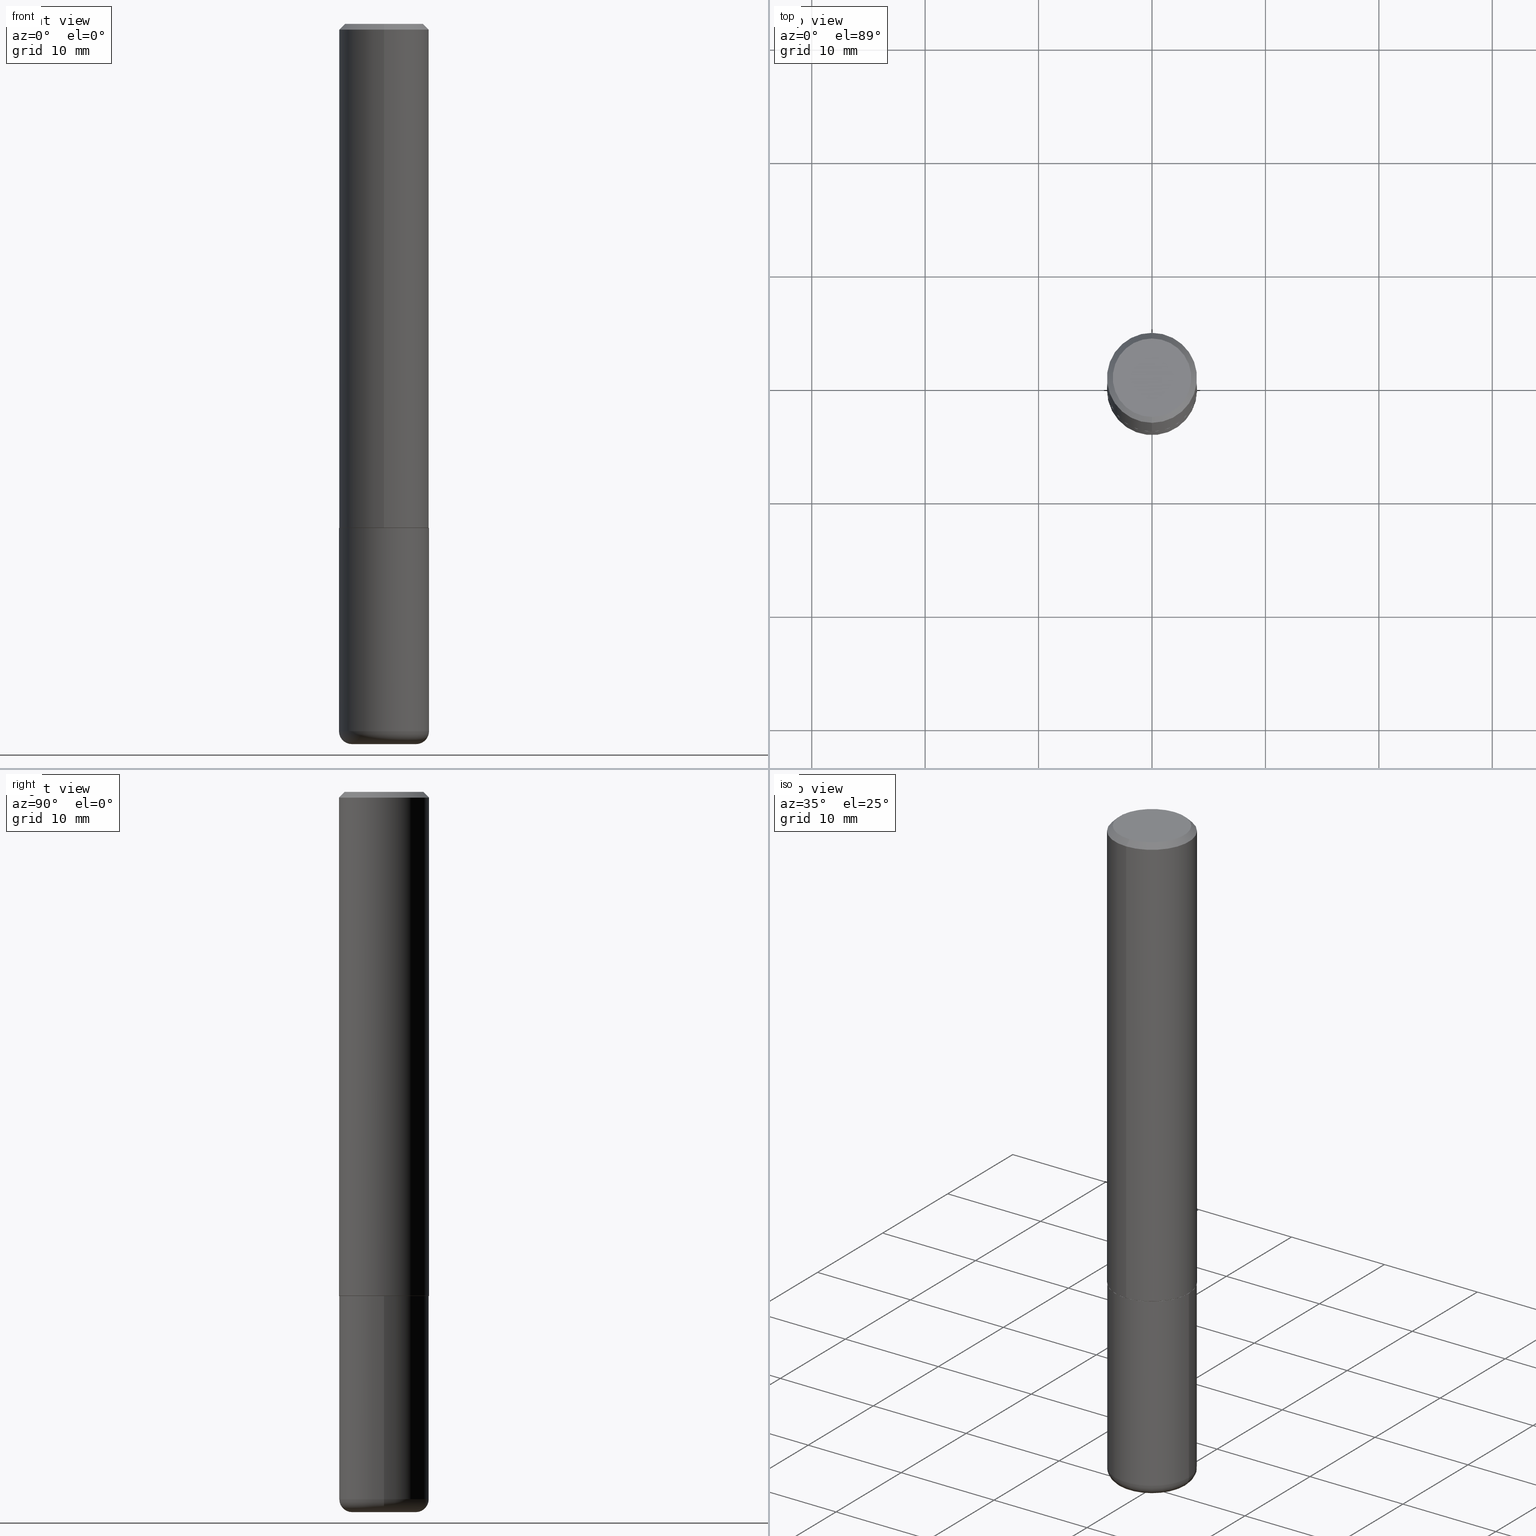
[diagram: canonical four-view strip — front | top / right | iso, engineering-drawing reading convention]
A machine part, canonical four-view strip (front | top / right | iso — engineering-drawing reading convention). The complete STEP part file that produces these views, byte-faithful:
ISO-10303-21;
HEADER;
FILE_DESCRIPTION (( 'STEP AP203' ),
    '1' );
FILE_NAME ('36109.STEP',
    '2024-03-01T15:40:19',
    ( '' ),
    ( '' ),
    'SwSTEP 2.0',
    'SolidWorks 2023',
    '' );
FILE_SCHEMA (( 'CONFIG_CONTROL_DESIGN' ));
ENDSEC;

DATA;
#1 =( NAMED_UNIT ( * ) PLANE_ANGLE_UNIT ( ) SI_UNIT ( $, .RADIAN. ) );
#2 = CARTESIAN_POINT ( 'NONE',  ( 0.000000000000000000, 0.000000000000000000, 0.000000000000000000 ) ) ;
#3 = CIRCLE ( 'NONE', #310, 0.1552499999999999991 ) ;
#4 = PERSON_AND_ORGANIZATION ( #101, #247 ) ;
#5 = APPLICATION_CONTEXT ( 'configuration controlled 3d designs of mechanical parts and assemblies' ) ;
#6 = DATE_AND_TIME ( #332, #220 ) ;
#7 = DIRECTION ( 'NONE',  ( 0.000000000000000000, 0.000000000000000000, 1.000000000000000000 ) ) ;
#8 = CARTESIAN_POINT ( 'NONE',  ( 1.110223024625157329E-15, 0.1562500000000001388, -5.459638814658946559E-16 ) ) ;
#9 = AXIS2_PLACEMENT_3D ( 'NONE', #296, #329, #163 ) ;
#10 = EDGE_LOOP ( 'NONE', ( #183, #223, #18, #73 ) ) ;
#11 = APPROVAL_DATE_TIME ( #246, #54 ) ;
#12 = EDGE_CURVE ( 'NONE', #403, #402, #235, .T. ) ;
#13 = AXIS2_PLACEMENT_3D ( 'NONE', #143, #368, #205 ) ;
#14 = SECURITY_CLASSIFICATION ( '', '', #168 ) ;
#15 = VERTEX_POINT ( 'NONE', #252 ) ;
#16 = CC_DESIGN_PERSON_AND_ORGANIZATION_ASSIGNMENT ( #393, #207, ( #140 ) ) ;
#17 = ORIENTED_EDGE ( 'NONE', *, *, #331, .T. ) ;
#18 = ORIENTED_EDGE ( 'NONE', *, *, #343, .T. ) ;
#19 = CARTESIAN_POINT ( 'NONE',  ( 4.887184266385666173E-31, -6.988337682763458192E-17, -0.02000000000000003511 ) ) ;
#20 = EDGE_LOOP ( 'NONE', ( #372, #312 ) ) ;
#21 = AXIS2_PLACEMENT_3D ( 'NONE', #128, #97, #260 ) ;
#22 = DIRECTION ( 'NONE',  ( -1.000000000000000000, 6.982962677686265922E-15, -4.876176775795935793E-29 ) ) ;
#23 = CARTESIAN_POINT ( 'NONE',  ( 1.110223024625179220E-15, 0.1562499999999940881, -1.749000000000000554 ) ) ;
#24 = CARTESIAN_POINT ( 'NONE',  ( -0.1562500000000000000, -6.230616490292557845E-15, -1.750000000000000222 ) ) ;
#25 = EDGE_CURVE ( 'NONE', #216, #108, #378, .T. ) ;
#26 = DIRECTION ( 'NONE',  ( -2.445468806185136597E-29, 3.491481338843145583E-15, 1.000000000000000000 ) ) ;
#27 = DIRECTION ( 'NONE',  ( -6.982962677686265922E-15, -1.000000000000000000, 3.519288880726909138E-15 ) ) ;
#28 = AXIS2_PLACEMENT_3D ( 'NONE', #59, #351, #165 ) ;
#29 = CARTESIAN_POINT ( 'NONE',  ( 0.1562500000000000000, -7.201180261363985422E-15, -1.750000000000000222 ) ) ;
#30 = CC_DESIGN_DATE_AND_TIME_ASSIGNMENT ( #6, #179, ( #14 ) ) ;
#31 = CARTESIAN_POINT ( 'NONE',  ( -0.1562500000000000000, 1.110223024625156540E-15, -7.685836078523291160E-30 ) ) ;
#32 = CARTESIAN_POINT ( 'NONE',  ( 0.000000000000000000, 0.000000000000000000, 0.000000000000000000 ) ) ;
#33 = PERSON_AND_ORGANIZATION ( #101, #247 ) ;
#34 = DIRECTION ( 'NONE',  ( -6.982962677686265922E-15, -1.000000000000000000, 3.494168841381722958E-15 ) ) ;
#35 = DIMENSIONAL_EXPONENTS ( 1.000000000000000000, 0.000000000000000000, 0.000000000000000000, 0.000000000000000000, 0.000000000000000000, 0.000000000000000000, 0.000000000000000000 ) ;
#36 = AXIS2_PLACEMENT_3D ( 'NONE', #125, #236, #22 ) ;
#37 = CC_DESIGN_APPROVAL ( #244, ( #140 ) ) ;
#38 = CARTESIAN_POINT ( 'NONE',  ( 9.514286648347539576E-16, 0.1362500000000000100, -4.545548560773172373E-16 ) ) ;
#39 =( LENGTH_UNIT ( ) NAMED_UNIT ( * ) SI_UNIT ( $, .METRE. ) );
#40 = FACE_OUTER_BOUND ( 'NONE', #141, .T. ) ;
#41 = ORIENTED_EDGE ( 'NONE', *, *, #350, .F. ) ;
#42 = ORIENTED_EDGE ( 'NONE', *, *, #301, .T. ) ;
#43 = EDGE_CURVE ( 'NONE', #216, #221, #3, .T. ) ;
#44 = ORIENTED_EDGE ( 'NONE', *, *, #301, .F. ) ;
#45 = ORIENTED_EDGE ( 'NONE', *, *, #66, .F. ) ;
#46 = CIRCLE ( 'NONE', #21, 0.1562500000000000000 ) ;
#47 = CIRCLE ( 'NONE', #212, 0.1562500000000002220 ) ;
#48 = VERTEX_POINT ( 'NONE', #263 ) ;
#49 = EDGE_LOOP ( 'NONE', ( #150, #50, #119, #149 ) ) ;
#50 = ORIENTED_EDGE ( 'NONE', *, *, #120, .T. ) ;
#51 = ORIENTED_EDGE ( 'NONE', *, *, #176, .T. ) ;
#52 = DIRECTION ( 'NONE',  ( -2.443592133192829145E-29, 3.494168841381722958E-15, 1.000000000000000000 ) ) ;
#53 = DIRECTION ( 'NONE',  ( -6.982962677686265922E-15, -1.000000000000000000, 3.494168841381722563E-15 ) ) ;
#54 = APPROVAL ( #274, 'UNSPECIFIED' ) ;
#55 = VECTOR ( 'NONE', #152, 39.37007874015748143 ) ;
#56 = CARTESIAN_POINT ( 'NONE',  ( -0.1562500000000000000, -7.461363662234766770E-15, -2.455000000000000071 ) ) ;
#57 = LINE ( 'NONE', #187, #241 ) ;
#58 = DIRECTION ( 'NONE',  ( -6.982962677686265922E-15, -1.000000000000000000, 3.494168841381722563E-15 ) ) ;
#59 = CARTESIAN_POINT ( 'NONE',  ( 4.276286233087450864E-29, -6.114795472418015571E-15, -1.750000000000000222 ) ) ;
#60 = ADVANCED_FACE ( 'NONE', ( #384 ), #200, .T. ) ;
#61 = CARTESIAN_POINT ( 'NONE',  ( -1.084104955710750166E-15, -0.1552500000000061053, -1.749999999999999556 ) ) ;
#62 = APPROVAL_PERSON_ORGANIZATION ( #218, #54, #307 ) ;
#63 = FACE_OUTER_BOUND ( 'NONE', #278, .T. ) ;
#64 = CARTESIAN_POINT ( 'NONE',  ( 6.113672015462842613E-29, -8.728703347107864943E-15, -2.500000000000000000 ) ) ;
#65 = DATE_AND_TIME ( #239, #104 ) ;
#66 = EDGE_CURVE ( 'NONE', #221, #216, #361, .T. ) ;
#67 = CIRCLE ( 'NONE', #305, 0.04499999999999996364 ) ;
#68 = VECTOR ( 'NONE', #82, 39.37007874015748143 ) ;
#69 = DIRECTION ( 'NONE',  ( 1.000000000000000000, -6.982962677686269077E-15, 0.000000000000000000 ) ) ;
#70 = CIRCLE ( 'NONE', #333, 0.1112500000000000017 ) ;
#71 = VERTEX_POINT ( 'NONE', #362 ) ;
#72 = PRODUCT ( '36109', '36109', '', ( #138 ) ) ;
#73 = ORIENTED_EDGE ( 'NONE', *, *, #176, .F. ) ;
#74 = CC_DESIGN_DATE_AND_TIME_ASSIGNMENT ( #84, #155, ( #158 ) ) ;
#75 = DIRECTION ( 'NONE',  ( -2.443592133192829145E-29, 3.494168841381722958E-15, 1.000000000000000000 ) ) ;
#76 = ORIENTED_EDGE ( 'NONE', *, *, #25, .T. ) ;
#77 = EDGE_CURVE ( 'NONE', #214, #345, #46, .T. ) ;
#78 = ORIENTED_EDGE ( 'NONE', *, *, #242, .F. ) ;
#79 = VERTEX_POINT ( 'NONE', #91 ) ;
#80 = ORIENTED_EDGE ( 'NONE', *, *, #288, .T. ) ;
#81 = APPROVAL_ROLE ( '' ) ;
#82 = DIRECTION ( 'NONE',  ( -2.445468806185136877E-29, 3.491481338843145188E-15, 1.000000000000000000 ) ) ;
#83 = CARTESIAN_POINT ( 'NONE',  ( -0.1112500000000000017, -7.781107893326811349E-15, -2.455000000000000071 ) ) ;
#84 = DATE_AND_TIME ( #314, #319 ) ;
#85 = DIRECTION ( 'NONE',  ( 1.000000000000000000, -6.982962677686266711E-15, 4.876176775795936353E-29 ) ) ;
#86 = TOROIDAL_SURFACE ( 'NONE', #282, 0.1112500000000000017, 0.04499999999999996364 ) ;
#87 = DIRECTION ( 'NONE',  ( 1.000000000000000000, -6.982962677686266711E-15, 4.876176775795936353E-29 ) ) ;
#88 = VECTOR ( 'NONE', #75, 39.37007874015748143 ) ;
#89 = VECTOR ( 'NONE', #261, 39.37007874015748143 ) ;
#90 = PLANE ( 'NONE',  #367 ) ;
#91 = CARTESIAN_POINT ( 'NONE',  ( 1.021258291611616861E-15, 0.1362500000000000100, -4.330292075163745362E-16 ) ) ;
#92 = COORDINATED_UNIVERSAL_TIME_OFFSET ( 5, 0, .BEHIND. ) ;
#93 = CARTESIAN_POINT ( 'NONE',  ( 4.273842640954258805E-29, -6.111301303576634099E-15, -1.749000000000000110 ) ) ;
#94 = DIRECTION ( 'NONE',  ( 2.443592133192829145E-29, -3.494168841381722958E-15, -1.000000000000000000 ) ) ;
#95 = DESIGN_CONTEXT ( 'detailed design', #394, 'design' ) ;
#96 = CARTESIAN_POINT ( 'NONE',  ( 0.000000000000000000, 0.000000000000000000, 0.000000000000000000 ) ) ;
#97 = DIRECTION ( 'NONE',  ( -2.445468806185136597E-29, 3.491481338843145583E-15, 1.000000000000000000 ) ) ;
#98 = PERSON_AND_ORGANIZATION ( #101, #247 ) ;
#99 = DIRECTION ( 'NONE',  ( 1.000000000000000000, 0.000000000000000000, 0.000000000000000000 ) ) ;
#100 = COORDINATED_UNIVERSAL_TIME_OFFSET ( 5, 0, .BEHIND. ) ;
#101 = PERSON ( 'UNSPECIFIED', 'UNSPECIFIED', 'UNSPECIFIED', ('UNSPECIFIED'), ('UNSPECIFIED'), ('UNSPECIFIED') ) ;
#102 = PLANE ( 'NONE',  #397 ) ;
#103 = AXIS2_PLACEMENT_3D ( 'NONE', #287, #412, #123 ) ;
#104 = LOCAL_TIME ( 10, 40, 19.00000000000000000, #100 ) ;
#105 =( CONVERSION_BASED_UNIT ( 'INCH', #142 ) LENGTH_UNIT ( ) NAMED_UNIT ( #35 ) );
#106 = DIRECTION ( 'NONE',  ( -6.982962677686266711E-15, -1.000000000000000000, 3.491481338843145583E-15 ) ) ;
#107 = SHAPE_DEFINITION_REPRESENTATION ( #407, #122 ) ;
#108 = VERTEX_POINT ( 'NONE', #360 ) ;
#109 = ADVANCED_FACE ( 'NONE', ( #63 ), #330, .T. ) ;
#110 = CIRCLE ( 'NONE', #116, 0.1562500000000002220 ) ;
#111 = AXIS2_PLACEMENT_3D ( 'NONE', #121, #124, #85 ) ;
#112 = EDGE_LOOP ( 'NONE', ( #374, #344, #76, #373 ) ) ;
#113 = EDGE_LOOP ( 'NONE', ( #313, #45 ) ) ;
#114 = ORIENTED_EDGE ( 'NONE', *, *, #364, .T. ) ;
#115 = EDGE_LOOP ( 'NONE', ( #215, #17, #309, #341 ) ) ;
#116 = AXIS2_PLACEMENT_3D ( 'NONE', #131, #295, #417 ) ;
#117 = DIRECTION ( 'NONE',  ( 1.000000000000000000, -6.982962677686269077E-15, 0.000000000000000000 ) ) ;
#118 = DIRECTION ( 'NONE',  ( -6.982962677686266711E-15, -1.000000000000000000, 3.496765431890256131E-15 ) ) ;
#119 = ORIENTED_EDGE ( 'NONE', *, *, #380, .F. ) ;
#120 = EDGE_CURVE ( 'NONE', #15, #403, #67, .T. ) ;
#121 = CARTESIAN_POINT ( 'NONE',  ( 0.000000000000000000, 0.000000000000000000, 0.000000000000000000 ) ) ;
#122 = ADVANCED_BREP_SHAPE_REPRESENTATION ( '36109', ( #189, #193, #416 ), #376 ) ;
#123 = DIRECTION ( 'NONE',  ( -6.982962677686265922E-15, -1.000000000000000000, 3.519288880726909138E-15 ) ) ;
#124 = DIRECTION ( 'NONE',  ( -2.445468806185136597E-29, 3.491481338843145583E-15, 1.000000000000000000 ) ) ;
#125 = CARTESIAN_POINT ( 'NONE',  ( 6.113672015462842613E-29, -8.728703347107864943E-15, -2.500000000000000000 ) ) ;
#126 = CIRCLE ( 'NONE', #197, 0.1562500000000000278 ) ;
#127 = DIRECTION ( 'NONE',  ( -6.982962677686266711E-15, -1.000000000000000000, 3.494168841381722958E-15 ) ) ;
#128 = CARTESIAN_POINT ( 'NONE',  ( 4.279570410823989044E-29, -6.110092342975505460E-15, -1.750000000000000222 ) ) ;
#129 = CYLINDRICAL_SURFACE ( 'NONE', #181, 0.1562500000000001388 ) ;
#130 = CARTESIAN_POINT ( 'NONE',  ( -1.091087918388479962E-15, -0.1562500000000001388, 5.459638814658946559E-16 ) ) ;
#131 = CARTESIAN_POINT ( 'NONE',  ( 4.273842640954258805E-29, -6.111301303576634099E-15, -1.749000000000000110 ) ) ;
#132 = CC_DESIGN_SECURITY_CLASSIFICATION ( #14, ( #140 ) ) ;
#133 = APPROVAL ( #134, 'UNSPECIFIED' ) ;
#134 = APPROVAL_STATUS ( 'not_yet_approved' ) ;
#135 = DIRECTION ( 'NONE',  ( -2.445468806185136597E-29, 3.491481338843145583E-15, 1.000000000000000000 ) ) ;
#136 = COORDINATED_UNIVERSAL_TIME_OFFSET ( 5, 0, .BEHIND. ) ;
#137 = ADVANCED_FACE ( 'NONE', ( #418 ), #401, .T. ) ;
#138 = MECHANICAL_CONTEXT ( 'NONE', #5, 'mechanical' ) ;
#139 = PERSON_AND_ORGANIZATION_ROLE ( 'creator' ) ;
#140 = PRODUCT_DEFINITION_FORMATION_WITH_SPECIFIED_SOURCE ( 'ANY', '', #72, .NOT_KNOWN. ) ;
#141 = EDGE_LOOP ( 'NONE', ( #255, #42, #280, #206 ) ) ;
#142 = LENGTH_MEASURE_WITH_UNIT ( LENGTH_MEASURE( 0.02539999999999999897 ), #39 );
#143 = CARTESIAN_POINT ( 'NONE',  ( 4.279570410823989044E-29, -6.110092342975505460E-15, -1.750000000000000222 ) ) ;
#144 = COORDINATED_UNIVERSAL_TIME_OFFSET ( 5, 0, .BEHIND. ) ;
#145 = ORIENTED_EDGE ( 'NONE', *, *, #364, .F. ) ;
#146 = CONICAL_SURFACE ( 'NONE', #162, 0.1562500000000000278, 0.7853981633974471688 ) ;
#147 = ADVANCED_FACE ( 'NONE', ( #293 ), #160, .T. ) ;
#148 = AXIS2_PLACEMENT_3D ( 'NONE', #414, #386, #227 ) ;
#149 = ORIENTED_EDGE ( 'NONE', *, *, #279, .F. ) ;
#150 = ORIENTED_EDGE ( 'NONE', *, *, #242, .T. ) ;
#151 = VERTEX_POINT ( 'NONE', #321 ) ;
#152 = DIRECTION ( 'NONE',  ( 5.024295867788404755E-15, 0.7071067811865981989, 0.7071067811864968355 ) ) ;
#153 = CIRCLE ( 'NONE', #276, 0.04499999999999996364 ) ;
#154 = ORIENTED_EDGE ( 'NONE', *, *, #311, .T. ) ;
#155 = DATE_TIME_ROLE ( 'creation_date' ) ;
#156 = CYLINDRICAL_SURFACE ( 'NONE', #111, 0.1562500000000000000 ) ;
#157 = DIRECTION ( 'NONE',  ( -6.982962677686266711E-15, -1.000000000000000000, 3.494168841381722958E-15 ) ) ;
#158 = PRODUCT_DEFINITION ( 'UNKNOWN', '', #140, #95 ) ;
#159 = PLANE ( 'NONE',  #277 ) ;
#160 = CYLINDRICAL_SURFACE ( 'NONE', #271, 0.1562500000000001388 ) ;
#161 = EDGE_CURVE ( 'NONE', #108, #315, #110, .T. ) ;
#162 = AXIS2_PLACEMENT_3D ( 'NONE', #392, #234, #389 ) ;
#163 = DIRECTION ( 'NONE',  ( -6.982962677686265922E-15, -1.000000000000000000, 3.519288880726909138E-15 ) ) ;
#164 = DIRECTION ( 'NONE',  ( 1.000000000000000000, -6.982962677686269077E-15, 0.000000000000000000 ) ) ;
#165 = DIRECTION ( 'NONE',  ( -6.982962677686265922E-15, -1.000000000000000000, 3.519288880726909138E-15 ) ) ;
#166 = DIRECTION ( 'NONE',  ( 7.105427357601001859E-15, 1.000000000000000000, -3.491481338843145583E-15 ) ) ;
#167 = EDGE_CURVE ( 'NONE', #79, #151, #366, .T. ) ;
#168 = SECURITY_CLASSIFICATION_LEVEL ( 'unclassified' ) ;
#169 = PERSON_AND_ORGANIZATION_ROLE ( 'design_owner' ) ;
#170 = AXIS2_PLACEMENT_3D ( 'NONE', #328, #356, #258 ) ;
#171 = PERSON_AND_ORGANIZATION ( #101, #247 ) ;
#172 = LINE ( 'NONE', #8, #88 ) ;
#173 = DIRECTION ( 'NONE',  ( -2.445468806185136877E-29, 3.491481338843145188E-15, 1.000000000000000000 ) ) ;
#174 = ORIENTED_EDGE ( 'NONE', *, *, #77, .F. ) ;
#175 = EDGE_LOOP ( 'NONE', ( #323, #154 ) ) ;
#176 = EDGE_CURVE ( 'NONE', #79, #410, #57, .T. ) ;
#177 = ADVANCED_FACE ( 'NONE', ( #232 ), #291, .T. ) ;
#178 = ORIENTED_EDGE ( 'NONE', *, *, #167, .F. ) ;
#179 = DATE_TIME_ROLE ( 'classification_date' ) ;
#180 = EDGE_LOOP ( 'NONE', ( #347, #80, #308, #405 ) ) ;
#181 = AXIS2_PLACEMENT_3D ( 'NONE', #96, #52, #58 ) ;
#182 = EDGE_LOOP ( 'NONE', ( #78, #44 ) ) ;
#183 = ORIENTED_EDGE ( 'NONE', *, *, #311, .F. ) ;
#184 = EDGE_LOOP ( 'NONE', ( #250, #342, #339, #145 ) ) ;
#185 = DIRECTION ( 'NONE',  ( -2.443592133192829145E-29, 3.494168841381722958E-15, 1.000000000000000000 ) ) ;
#186 = AXIS2_PLACEMENT_3D ( 'NONE', #194, #292, #127 ) ;
#187 = CARTESIAN_POINT ( 'NONE',  ( 1.091087918388479765E-15, 0.1562499999999999722, -0.02000000000000057981 ) ) ;
#188 = FACE_OUTER_BOUND ( 'NONE', #175, .T. ) ;
#189 = MANIFOLD_SOLID_BREP ( 'Body-Move/Copy2[1]', #298 ) ;
#190 = DIRECTION ( 'NONE',  ( -2.443592133192829145E-29, 3.494168841381722958E-15, 1.000000000000000000 ) ) ;
#191 = EDGE_CURVE ( 'NONE', #108, #48, #326, .T. ) ;
#192 = DIRECTION ( 'NONE',  ( -2.445468806185136597E-29, 3.491481338843145583E-15, 1.000000000000000000 ) ) ;
#193 = MANIFOLD_SOLID_BREP ( 'Body-Move/Copy2[2]', #385 ) ;
#194 = CARTESIAN_POINT ( 'NONE',  ( -1.051998109707860162E-45, 1.504285009843582967E-31, 4.305129712188530359E-17 ) ) ;
#195 = AXIS2_PLACEMENT_3D ( 'NONE', #355, #94, #324 ) ;
#196 = DIRECTION ( 'NONE',  ( 4.937700262164541731E-15, 0.7071067811865442421, -0.7071067811865507924 ) ) ;
#197 = AXIS2_PLACEMENT_3D ( 'NONE', #19, #199, #118 ) ;
#198 = PERSON_AND_ORGANIZATION ( #101, #247 ) ;
#199 = DIRECTION ( 'NONE',  ( -2.443592133192829145E-29, 3.494168841381722958E-15, 1.000000000000000000 ) ) ;
#200 = PLANE ( 'NONE',  #36 ) ;
#201 = APPLICATION_PROTOCOL_DEFINITION ( 'international standard', 'config_control_design', 1994, #5 ) ;
#202 = APPROVAL_DATE_TIME ( #65, #133 ) ;
#203 = LOCAL_TIME ( 10, 40, 19.00000000000000000, #92 ) ;
#204 = ADVANCED_FACE ( 'NONE', ( #290 ), #146, .T. ) ;
#205 = DIRECTION ( 'NONE',  ( 1.000000000000000000, -6.982962677686269077E-15, 0.000000000000000000 ) ) ;
#206 = ORIENTED_EDGE ( 'NONE', *, *, #12, .F. ) ;
#207 = PERSON_AND_ORGANIZATION_ROLE ( 'design_supplier' ) ;
#208 = DIRECTION ( 'NONE',  ( 6.982962677686265922E-15, 1.000000000000000000, -3.494168841381722958E-15 ) ) ;
#209 = CARTESIAN_POINT ( 'NONE',  ( 6.003625919184510659E-29, -8.571586686859923311E-15, -2.455000000000000071 ) ) ;
#210 = CARTESIAN_POINT ( 'NONE',  ( 6.003625919184510659E-29, -8.571586686859923311E-15, -2.455000000000000071 ) ) ;
#211 = AXIS2_PLACEMENT_3D ( 'NONE', #210, #135, #396 ) ;
#212 = AXIS2_PLACEMENT_3D ( 'NONE', #93, #185, #391 ) ;
#213 = ADVANCED_FACE ( 'NONE', ( #230 ), #370, .T. ) ;
#214 = VERTEX_POINT ( 'NONE', #24 ) ;
#215 = ORIENTED_EDGE ( 'NONE', *, *, #43, .T. ) ;
#216 = VERTEX_POINT ( 'NONE', #61 ) ;
#217 = EDGE_LOOP ( 'NONE', ( #284, #178, #51, #348 ) ) ;
#218 = PERSON_AND_ORGANIZATION ( #101, #247 ) ;
#219 = CIRCLE ( 'NONE', #327, 0.1112500000000000017 ) ;
#220 = LOCAL_TIME ( 10, 40, 19.00000000000000000, #136 ) ;
#221 = VERTEX_POINT ( 'NONE', #243 ) ;
#222 = CARTESIAN_POINT ( 'NONE',  ( -1.084104955710750166E-15, -0.1552500000000061053, -1.749999999999999556 ) ) ;
#223 = ORIENTED_EDGE ( 'NONE', *, *, #322, .T. ) ;
#224 = CALENDAR_DATE ( 2024, 1, 3 ) ;
#225 = CC_DESIGN_PERSON_AND_ORGANIZATION_ASSIGNMENT ( #98, #390, ( #14 ) ) ;
#226 = CARTESIAN_POINT ( 'NONE',  ( -1.051998109707860162E-45, 1.504285009843582967E-31, 4.305129712188530359E-17 ) ) ;
#227 = DIRECTION ( 'NONE',  ( 1.000000000000000000, -6.982962677686269077E-15, 0.000000000000000000 ) ) ;
#228 = VECTOR ( 'NONE', #190, 39.37007874015748143 ) ;
#229 = CC_DESIGN_APPROVAL ( #133, ( #158 ) ) ;
#230 = FACE_OUTER_BOUND ( 'NONE', #217, .T. ) ;
#231 = CARTESIAN_POINT ( 'NONE',  ( -1.071952812151801412E-15, -0.1562500000000001110, -0.01999999999999948694 ) ) ;
#232 = FACE_OUTER_BOUND ( 'NONE', #115, .T. ) ;
#233 = FACE_OUTER_BOUND ( 'NONE', #20, .T. ) ;
#234 = DIRECTION ( 'NONE',  ( 2.443592133192829145E-29, -3.494168841381722958E-15, -1.000000000000000000 ) ) ;
#235 = CIRCLE ( 'NONE', #352, 0.1562500000000000000 ) ;
#236 = DIRECTION ( 'NONE',  ( 2.438088387897960049E-29, -3.491481338843145188E-15, -1.000000000000000000 ) ) ;
#237 = ADVANCED_FACE ( 'NONE', ( #270 ), #102, .F. ) ;
#238 =( NAMED_UNIT ( * ) SI_UNIT ( $, .STERADIAN. ) SOLID_ANGLE_UNIT ( ) );
#239 = CALENDAR_DATE ( 2024, 1, 3 ) ;
#240 = DIRECTION ( 'NONE',  ( -2.443592133192828865E-29, 3.494168841381722958E-15, 1.000000000000000000 ) ) ;
#241 = VECTOR ( 'NONE', #196, 39.37007874015748143 ) ;
#242 = EDGE_CURVE ( 'NONE', #71, #15, #219, .T. ) ;
#243 = CARTESIAN_POINT ( 'NONE',  ( 1.106670310946399226E-15, 0.1552499999999938929, -1.750000000000000666 ) ) ;
#244 = APPROVAL ( #379, 'UNSPECIFIED' ) ;
#245 = AXIS2_PLACEMENT_3D ( 'NONE', #226, #382, #157 ) ;
#246 = DATE_AND_TIME ( #400, #346 ) ;
#247 = ORGANIZATION ( 'UNSPECIFIED', 'UNSPECIFIED', '' ) ;
#248 = ADVANCED_FACE ( 'NONE', ( #40 ), #86, .T. ) ;
#249 = EDGE_LOOP ( 'NONE', ( #404, #273, #272, #41 ) ) ;
#250 = ORIENTED_EDGE ( 'NONE', *, *, #380, .T. ) ;
#251 = UNCERTAINTY_MEASURE_WITH_UNIT (LENGTH_MEASURE( 1.000000000000000082E-05 ), #105, 'distance_accuracy_value', 'NONE');
#252 = CARTESIAN_POINT ( 'NONE',  ( -0.1112500000000000017, -7.699794107904759087E-15, -2.500000000000000000 ) ) ;
#253 = PERSON_AND_ORGANIZATION ( #101, #247 ) ;
#254 = LINE ( 'NONE', #231, #89 ) ;
#255 = ORIENTED_EDGE ( 'NONE', *, *, #120, .F. ) ;
#256 = ADVANCED_FACE ( 'NONE', ( #337 ), #338, .T. ) ;
#257 = DIRECTION ( 'NONE',  ( -1.000000000000000000, 7.105427357600996337E-15, 0.000000000000000000 ) ) ;
#258 = DIRECTION ( 'NONE',  ( -6.982962677686266711E-15, -1.000000000000000000, 3.496765431890256131E-15 ) ) ;
#259 = CC_DESIGN_APPROVAL ( #54, ( #14 ) ) ;
#260 = DIRECTION ( 'NONE',  ( 1.000000000000000000, -6.982962677686269077E-15, 0.000000000000000000 ) ) ;
#261 = DIRECTION ( 'NONE',  ( -4.851104656540957964E-15, -0.7071067811865491270, -0.7071067811865459074 ) ) ;
#262 = CARTESIAN_POINT ( 'NONE',  ( 4.276286233087450864E-29, -6.114795472418015571E-15, -1.750000000000000222 ) ) ;
#263 = CARTESIAN_POINT ( 'NONE',  ( -1.071952812151801412E-15, -0.1562500000000001110, -0.01999999999999948694 ) ) ;
#264 = APPROVAL_DATE_TIME ( #318, #244 ) ;
#265 = CIRCLE ( 'NONE', #13, 0.1562500000000000000 ) ;
#266 = CARTESIAN_POINT ( 'NONE',  ( 4.276286233087450864E-29, -6.114795472418015571E-15, -1.750000000000000222 ) ) ;
#267 = CIRCLE ( 'NONE', #170, 0.1562500000000000278 ) ;
#268 = DIRECTION ( 'NONE',  ( 1.000000000000000000, -6.982962677686270655E-15, 4.883557194083114022E-29 ) ) ;
#269 = DIRECTION ( 'NONE',  ( 2.443592133192828865E-29, -3.494168841381722958E-15, -1.000000000000000000 ) ) ;
#270 = FACE_OUTER_BOUND ( 'NONE', #113, .T. ) ;
#271 = AXIS2_PLACEMENT_3D ( 'NONE', #2, #415, #53 ) ;
#272 = ORIENTED_EDGE ( 'NONE', *, *, #191, .T. ) ;
#273 = ORIENTED_EDGE ( 'NONE', *, *, #340, .T. ) ;
#274 = APPROVAL_STATUS ( 'not_yet_approved' ) ;
#275 = ORIENTED_EDGE ( 'NONE', *, *, #413, .F. ) ;
#276 = AXIS2_PLACEMENT_3D ( 'NONE', #363, #106, #303 ) ;
#277 = AXIS2_PLACEMENT_3D ( 'NONE', #294, #289, #349 ) ;
#278 = EDGE_LOOP ( 'NONE', ( #275, #371, #114, #174 ) ) ;
#279 = EDGE_CURVE ( 'NONE', #71, #402, #153, .T. ) ;
#280 = ORIENTED_EDGE ( 'NONE', *, *, #279, .T. ) ;
#281 = CARTESIAN_POINT ( 'NONE',  ( 6.003625919184510659E-29, -8.571586686859923311E-15, -2.455000000000000071 ) ) ;
#282 = AXIS2_PLACEMENT_3D ( 'NONE', #209, #300, #268 ) ;
#283 = CARTESIAN_POINT ( 'NONE',  ( 0.1562500000000000000, -1.091087918388479174E-15, 7.619026212181150377E-30 ) ) ;
#284 = ORIENTED_EDGE ( 'NONE', *, *, #322, .F. ) ;
#285 = EDGE_CURVE ( 'NONE', #345, #214, #265, .T. ) ;
#286 = CARTESIAN_POINT ( 'NONE',  ( 6.113672015462842613E-29, -8.728703347107864943E-15, -2.500000000000000000 ) ) ;
#287 = CARTESIAN_POINT ( 'NONE',  ( 4.276286233087450864E-29, -6.114795472418015571E-15, -1.750000000000000222 ) ) ;
#288 = EDGE_CURVE ( 'NONE', #315, #410, #172, .T. ) ;
#289 = DIRECTION ( 'NONE',  ( 2.438088387897960049E-29, -3.491481338843145188E-15, -1.000000000000000000 ) ) ;
#290 = FACE_OUTER_BOUND ( 'NONE', #10, .T. ) ;
#291 = CONICAL_SURFACE ( 'NONE', #103, 0.1552499999999999991, 0.7853981633975165577 ) ;
#292 = DIRECTION ( 'NONE',  ( -2.443592133192829145E-29, 3.494168841381722958E-15, 1.000000000000000000 ) ) ;
#293 = FACE_OUTER_BOUND ( 'NONE', #249, .T. ) ;
#294 = CARTESIAN_POINT ( 'NONE',  ( 4.279570410823989044E-29, -6.110092342975505460E-15, -1.750000000000000222 ) ) ;
#295 = DIRECTION ( 'NONE',  ( -2.443592133192829145E-29, 3.494168841381722958E-15, 1.000000000000000000 ) ) ;
#296 = CARTESIAN_POINT ( 'NONE',  ( 4.276286233087450864E-29, -6.114795472418015571E-15, -1.750000000000000222 ) ) ;
#297 = APPLICATION_PROTOCOL_DEFINITION ( 'international standard', 'config_control_design', 1994, #394 ) ;
#298 = CLOSED_SHELL ( 'NONE', ( #377, #256, #358, #109, #248, #60 ) ) ;
#299 = VECTOR ( 'NONE', #387, 39.37007874015748143 ) ;
#300 = DIRECTION ( 'NONE',  ( -2.445468806185136597E-29, 3.491481338843145583E-15, 1.000000000000000000 ) ) ;
#301 = EDGE_CURVE ( 'NONE', #15, #71, #70, .T. ) ;
#302 = PERSON_AND_ORGANIZATION_ROLE ( 'creator' ) ;
#303 = DIRECTION ( 'NONE',  ( 1.000000000000000000, -6.982962677686273810E-15, 0.000000000000000000 ) ) ;
#304 = CC_DESIGN_PERSON_AND_ORGANIZATION_ASSIGNMENT ( #33, #169, ( #72 ) ) ;
#305 = AXIS2_PLACEMENT_3D ( 'NONE', #83, #166, #257 ) ;
#306 = APPROVAL_PERSON_ORGANIZATION ( #253, #244, #81 ) ;
#307 = APPROVAL_ROLE ( '' ) ;
#308 = ORIENTED_EDGE ( 'NONE', *, *, #343, .F. ) ;
#309 = ORIENTED_EDGE ( 'NONE', *, *, #161, .F. ) ;
#310 = AXIS2_PLACEMENT_3D ( 'NONE', #262, #357, #27 ) ;
#311 = EDGE_CURVE ( 'NONE', #151, #79, #317, .T. ) ;
#312 = ORIENTED_EDGE ( 'NONE', *, *, #77, .T. ) ;
#313 = ORIENTED_EDGE ( 'NONE', *, *, #43, .F. ) ;
#314 = CALENDAR_DATE ( 2024, 1, 3 ) ;
#315 = VERTEX_POINT ( 'NONE', #23 ) ;
#316 = CC_DESIGN_PERSON_AND_ORGANIZATION_ASSIGNMENT ( #198, #139, ( #140 ) ) ;
#317 = CIRCLE ( 'NONE', #186, 0.1362500000000000100 ) ;
#318 = DATE_AND_TIME ( #224, #203 ) ;
#319 = LOCAL_TIME ( 10, 40, 19.00000000000000000, #388 ) ;
#320 = FACE_OUTER_BOUND ( 'NONE', #184, .T. ) ;
#321 = CARTESIAN_POINT ( 'NONE',  ( -1.003347832174086278E-15, -0.1362500000000000100, 5.191318017601450941E-16 ) ) ;
#322 = EDGE_CURVE ( 'NONE', #151, #48, #254, .T. ) ;
#323 = ORIENTED_EDGE ( 'NONE', *, *, #167, .T. ) ;
#324 = DIRECTION ( 'NONE',  ( 6.982962677686266711E-15, 1.000000000000000000, -3.496765431890256131E-15 ) ) ;
#325 = CC_DESIGN_PERSON_AND_ORGANIZATION_ASSIGNMENT ( #171, #302, ( #158 ) ) ;
#326 = LINE ( 'NONE', #130, #228 ) ;
#327 = AXIS2_PLACEMENT_3D ( 'NONE', #64, #334, #69 ) ;
#328 = CARTESIAN_POINT ( 'NONE',  ( 4.887184266385666173E-31, -6.988337682763458192E-17, -0.02000000000000003511 ) ) ;
#329 = DIRECTION ( 'NONE',  ( -2.443592133192829145E-29, 3.494168841381722958E-15, 1.000000000000000000 ) ) ;
#330 = CYLINDRICAL_SURFACE ( 'NONE', #375, 0.1562500000000000000 ) ;
#331 = EDGE_CURVE ( 'NONE', #221, #315, #411, .T. ) ;
#332 = CALENDAR_DATE ( 2024, 1, 3 ) ;
#333 = AXIS2_PLACEMENT_3D ( 'NONE', #286, #26, #164 ) ;
#334 = DIRECTION ( 'NONE',  ( -2.445468806185136597E-29, 3.491481338843145583E-15, 1.000000000000000000 ) ) ;
#335 = CIRCLE ( 'NONE', #148, 0.1562500000000000000 ) ;
#336 = LINE ( 'NONE', #31, #353 ) ;
#337 = FACE_OUTER_BOUND ( 'NONE', #49, .T. ) ;
#338 = TOROIDAL_SURFACE ( 'NONE', #211, 0.1112500000000000017, 0.04499999999999996364 ) ;
#339 = ORIENTED_EDGE ( 'NONE', *, *, #285, .F. ) ;
#340 = EDGE_CURVE ( 'NONE', #315, #108, #47, .T. ) ;
#341 = ORIENTED_EDGE ( 'NONE', *, *, #25, .F. ) ;
#342 = ORIENTED_EDGE ( 'NONE', *, *, #413, .T. ) ;
#343 = EDGE_CURVE ( 'NONE', #48, #410, #267, .T. ) ;
#344 = ORIENTED_EDGE ( 'NONE', *, *, #66, .T. ) ;
#345 = VERTEX_POINT ( 'NONE', #29 ) ;
#346 = LOCAL_TIME ( 10, 40, 19.00000000000000000, #144 ) ;
#347 = ORIENTED_EDGE ( 'NONE', *, *, #161, .T. ) ;
#348 = ORIENTED_EDGE ( 'NONE', *, *, #350, .T. ) ;
#349 = DIRECTION ( 'NONE',  ( -1.000000000000000000, 6.982962677686265922E-15, -4.876176775795935793E-29 ) ) ;
#350 = EDGE_CURVE ( 'NONE', #410, #48, #126, .T. ) ;
#351 = DIRECTION ( 'NONE',  ( -2.443592133192829145E-29, 3.494168841381722958E-15, 1.000000000000000000 ) ) ;
#352 = AXIS2_PLACEMENT_3D ( 'NONE', #281, #408, #117 ) ;
#353 = VECTOR ( 'NONE', #173, 39.37007874015748143 ) ;
#354 = CARTESIAN_POINT ( 'NONE',  ( 0.1562500000000000000, -9.662674605248401695E-15, -2.455000000000000071 ) ) ;
#355 = CARTESIAN_POINT ( 'NONE',  ( 4.887184266385666173E-31, -6.988337682763458192E-17, -0.02000000000000003511 ) ) ;
#356 = DIRECTION ( 'NONE',  ( -2.443592133192829145E-29, 3.494168841381722958E-15, 1.000000000000000000 ) ) ;
#357 = DIRECTION ( 'NONE',  ( -2.443592133192829145E-29, 3.494168841381722958E-15, 1.000000000000000000 ) ) ;
#358 = ADVANCED_FACE ( 'NONE', ( #233 ), #159, .F. ) ;
#359 = FACE_OUTER_BOUND ( 'NONE', #180, .T. ) ;
#360 = CARTESIAN_POINT ( 'NONE',  ( -1.091087918388437758E-15, -0.1562500000000063283, -1.748999999999999666 ) ) ;
#361 = CIRCLE ( 'NONE', #28, 0.1552499999999999991 ) ;
#362 = CARTESIAN_POINT ( 'NONE',  ( 0.1112500000000000017, -9.505557945000461641E-15, -2.500000000000000000 ) ) ;
#363 = CARTESIAN_POINT ( 'NONE',  ( 0.1112500000000000017, -9.348441284752520009E-15, -2.455000000000000071 ) ) ;
#364 = EDGE_CURVE ( 'NONE', #402, #345, #381, .T. ) ;
#365 = CARTESIAN_POINT ( 'NONE',  ( 0.000000000000000000, 0.000000000000000000, 0.000000000000000000 ) ) ;
#366 = CIRCLE ( 'NONE', #245, 0.1362500000000000100 ) ;
#367 = AXIS2_PLACEMENT_3D ( 'NONE', #38, #269, #208 ) ;
#368 = DIRECTION ( 'NONE',  ( -2.445468806185136597E-29, 3.491481338843145583E-15, 1.000000000000000000 ) ) ;
#369 = ADVANCED_FACE ( 'NONE', ( #359 ), #129, .T. ) ;
#370 = CONICAL_SURFACE ( 'NONE', #195, 0.1562500000000000278, 0.7853981633974471688 ) ;
#371 = ORIENTED_EDGE ( 'NONE', *, *, #12, .T. ) ;
#372 = ORIENTED_EDGE ( 'NONE', *, *, #285, .T. ) ;
#373 = ORIENTED_EDGE ( 'NONE', *, *, #340, .F. ) ;
#374 = ORIENTED_EDGE ( 'NONE', *, *, #331, .F. ) ;
#375 = AXIS2_PLACEMENT_3D ( 'NONE', #32, #192, #87 ) ;
#376 =( GEOMETRIC_REPRESENTATION_CONTEXT ( 3 ) GLOBAL_UNCERTAINTY_ASSIGNED_CONTEXT ( ( #251 ) ) GLOBAL_UNIT_ASSIGNED_CONTEXT ( ( #105, #1, #238 ) ) REPRESENTATION_CONTEXT ( 'NONE', 'WORKASPACE' ) );
#377 = ADVANCED_FACE ( 'NONE', ( #320 ), #156, .T. ) ;
#378 = LINE ( 'NONE', #222, #299 ) ;
#379 = APPROVAL_STATUS ( 'not_yet_approved' ) ;
#380 = EDGE_CURVE ( 'NONE', #402, #403, #335, .T. ) ;
#381 = LINE ( 'NONE', #283, #68 ) ;
#382 = DIRECTION ( 'NONE',  ( -2.443592133192829145E-29, 3.494168841381722958E-15, 1.000000000000000000 ) ) ;
#383 = PRODUCT_RELATED_PRODUCT_CATEGORY ( 'detail', '', ( #72 ) ) ;
#384 = FACE_OUTER_BOUND ( 'NONE', #182, .T. ) ;
#385 = CLOSED_SHELL ( 'NONE', ( #177, #369, #204, #213, #147, #137, #237, #406 ) ) ;
#386 = DIRECTION ( 'NONE',  ( -2.445468806185136597E-29, 3.491481338843145583E-15, 1.000000000000000000 ) ) ;
#387 = DIRECTION ( 'NONE',  ( -4.937700262164884886E-15, -0.7071067811865933139, 0.7071067811865017205 ) ) ;
#388 = COORDINATED_UNIVERSAL_TIME_OFFSET ( 5, 0, .BEHIND. ) ;
#389 = DIRECTION ( 'NONE',  ( 6.982962677686266711E-15, 1.000000000000000000, -3.496765431890256131E-15 ) ) ;
#390 = PERSON_AND_ORGANIZATION_ROLE ( 'classification_officer' ) ;
#391 = DIRECTION ( 'NONE',  ( -6.982962677686265922E-15, -1.000000000000000000, 3.496765431890251792E-15 ) ) ;
#392 = CARTESIAN_POINT ( 'NONE',  ( 4.887184266385666173E-31, -6.988337682763458192E-17, -0.02000000000000003511 ) ) ;
#393 = PERSON_AND_ORGANIZATION ( #101, #247 ) ;
#394 = APPLICATION_CONTEXT ( 'configuration controlled 3d designs of mechanical parts and assemblies' ) ;
#395 = APPROVAL_ROLE ( '' ) ;
#396 = DIRECTION ( 'NONE',  ( 1.000000000000000000, -6.982962677686270655E-15, 4.883557194083114022E-29 ) ) ;
#397 = AXIS2_PLACEMENT_3D ( 'NONE', #266, #240, #34 ) ;
#398 = APPROVAL_PERSON_ORGANIZATION ( #4, #133, #395 ) ;
#399 = CARTESIAN_POINT ( 'NONE',  ( 1.091087918388479765E-15, 0.1562499999999999722, -0.02000000000000057981 ) ) ;
#400 = CALENDAR_DATE ( 2024, 1, 3 ) ;
#401 = CONICAL_SURFACE ( 'NONE', #9, 0.1552499999999999991, 0.7853981633975165577 ) ;
#402 = VERTEX_POINT ( 'NONE', #354 ) ;
#403 = VERTEX_POINT ( 'NONE', #56 ) ;
#404 = ORIENTED_EDGE ( 'NONE', *, *, #288, .F. ) ;
#405 = ORIENTED_EDGE ( 'NONE', *, *, #191, .F. ) ;
#406 = ADVANCED_FACE ( 'NONE', ( #188 ), #90, .F. ) ;
#407 = PRODUCT_DEFINITION_SHAPE ( 'NONE', 'NONE',  #158 ) ;
#408 = DIRECTION ( 'NONE',  ( -2.445468806185136597E-29, 3.491481338843145583E-15, 1.000000000000000000 ) ) ;
#409 = CARTESIAN_POINT ( 'NONE',  ( 1.103117597267597934E-15, 0.1552499999999938929, -1.750000000000000666 ) ) ;
#410 = VERTEX_POINT ( 'NONE', #399 ) ;
#411 = LINE ( 'NONE', #409, #55 ) ;
#412 = DIRECTION ( 'NONE',  ( -2.443592133192829145E-29, 3.494168841381722958E-15, 1.000000000000000000 ) ) ;
#413 = EDGE_CURVE ( 'NONE', #403, #214, #336, .T. ) ;
#414 = CARTESIAN_POINT ( 'NONE',  ( 6.003625919184510659E-29, -8.571586686859923311E-15, -2.455000000000000071 ) ) ;
#415 = DIRECTION ( 'NONE',  ( -2.443592133192829145E-29, 3.494168841381722958E-15, 1.000000000000000000 ) ) ;
#416 = AXIS2_PLACEMENT_3D ( 'NONE', #365, #7, #99 ) ;
#417 = DIRECTION ( 'NONE',  ( -6.982962677686265922E-15, -1.000000000000000000, 3.496765431890251792E-15 ) ) ;
#418 = FACE_OUTER_BOUND ( 'NONE', #112, .T. ) ;
ENDSEC;
END-ISO-10303-21;
